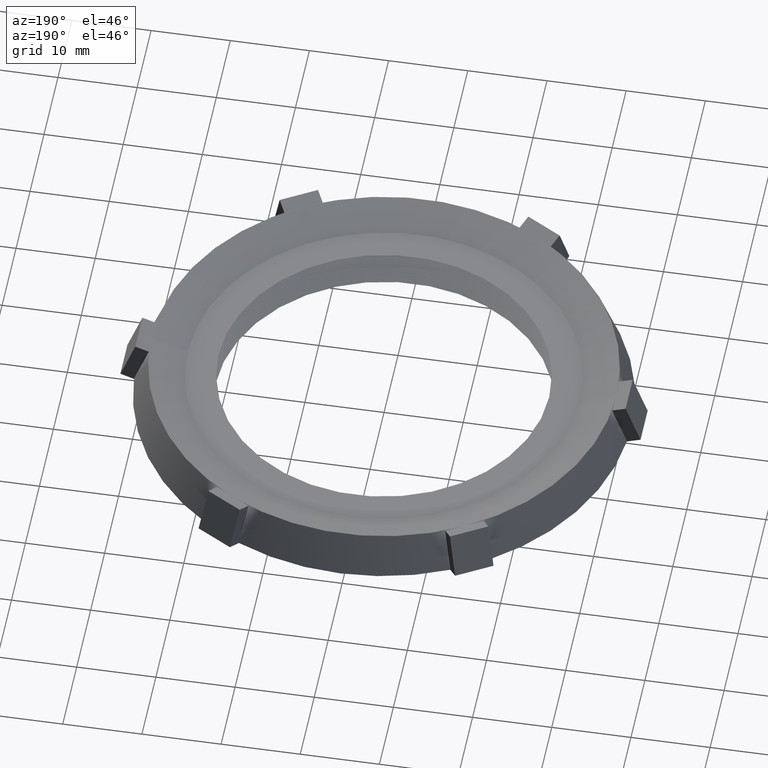
[diagram: clean part render]
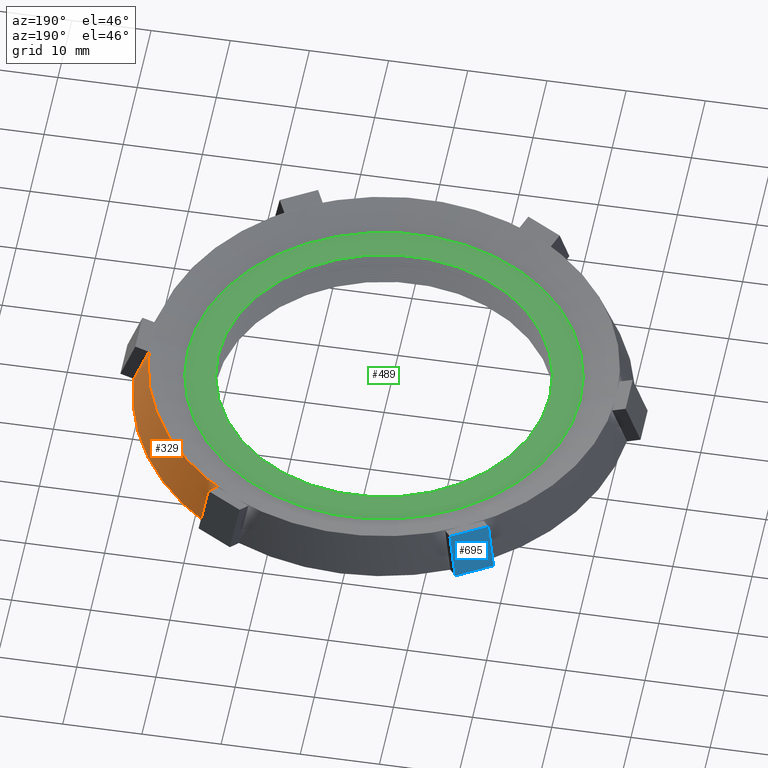
[diagram: same view with three faces highlighted in distinct colors, each labeled with its STEP entity id]
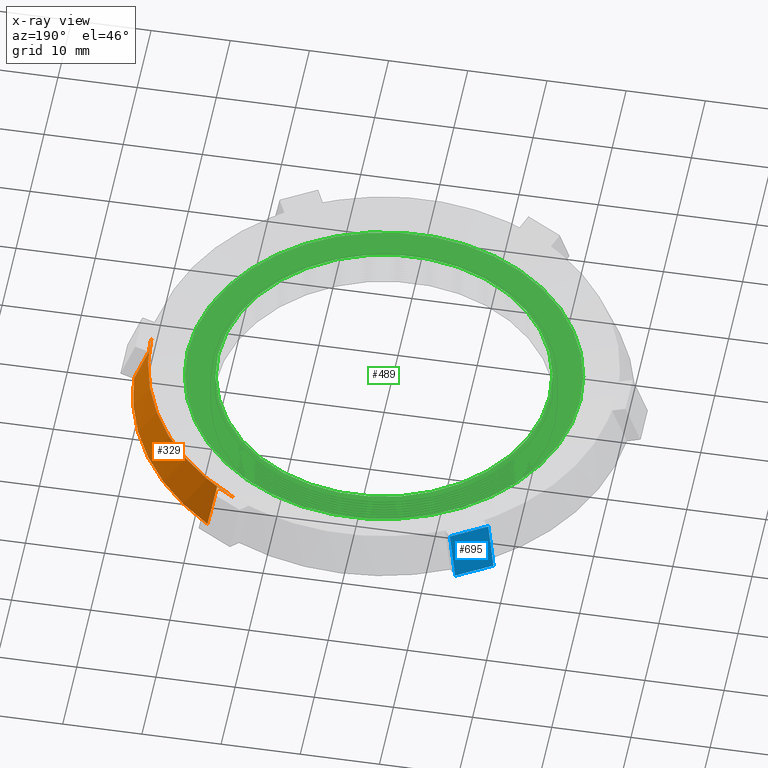
[diagram: x-ray of the same camera — body ghosted, the three highlighted faces saturated]
A machine part, auxiliary view with three faces highlighted in distinct colors.
The next image is the same camera in x-ray (body ghosted, the three faces saturated) — at least one of them is partly hidden behind the body in this view.
Their STEP definitions:

[orange] entity #329 — the highlighted conical surface has half-angle 20 deg.
#236 = VERTEX_POINT ( 'NONE', #1517 ) ;
#255 = EDGE_CURVE ( 'NONE', #323, #256, #1488, .T. ) ;
#256 = VERTEX_POINT ( 'NONE', #1483 ) ;
#323 = VERTEX_POINT ( 'NONE', #1714 ) ;
#327 = EDGE_LOOP ( 'NONE', ( #328, #396, #394, #390, #387, #494 ) ) ;
#328 = ORIENTED_EDGE ( 'NONE', *, *, #395, .F. ) ;
#329 = ADVANCED_FACE ( 'NONE', ( #1571 ), #1570, .T. ) ;
#336 = VERTEX_POINT ( 'NONE', #1677 ) ;
#386 = EDGE_CURVE ( 'NONE', #323, #393, #1877, .T. ) ;
#387 = ORIENTED_EDGE ( 'NONE', *, *, #255, .F. ) ;
#389 = EDGE_CURVE ( 'NONE', #256, #392, #1872, .T. ) ;
#390 = ORIENTED_EDGE ( 'NONE', *, *, #389, .F. ) ;
#391 = EDGE_CURVE ( 'NONE', #392, #236, #1863, .T. ) ;
#392 = VERTEX_POINT ( 'NONE', #1862 ) ;
#393 = VERTEX_POINT ( 'NONE', #1871 ) ;
#394 = ORIENTED_EDGE ( 'NONE', *, *, #391, .F. ) ;
#395 = EDGE_CURVE ( 'NONE', #336, #393, #1890, .T. ) ;
#396 = ORIENTED_EDGE ( 'NONE', *, *, #397, .T. ) ;
#397 = EDGE_CURVE ( 'NONE', #336, #236, #1885, .T. ) ;
#494 = ORIENTED_EDGE ( 'NONE', *, *, #386, .T. ) ;
#1483 = CARTESIAN_POINT ( 'NONE',  ( 1.225928219758400100, 0.09999999999999999200, -0.03448535783208510300 ) ) ;
#1484 = DIRECTION ( 'NONE',  ( -1.000000000000000000, 0.0000000000000000000, 0.0000000000000000000 ) ) ;
#1485 = DIRECTION ( 'NONE',  ( -0.0000000000000000000, -0.0000000000000000000, -1.000000000000000000 ) ) ;
#1486 = CARTESIAN_POINT ( 'NONE',  ( 0.0000000000000000000, 0.0000000000000000000, -0.03448535783208510300 ) ) ;
#1487 = AXIS2_PLACEMENT_3D ( 'NONE', #1486, #1485, #1484 ) ;
#1488 = CIRCLE ( 'NONE', #1487, 1.230000000000000000 ) ;
#1517 = CARTESIAN_POINT ( 'NONE',  ( 1.155573416405849500, 0.0000000000000000000, 0.1700000000000001800 ) ) ;
#1566 = DIRECTION ( 'NONE',  ( -1.000000000000000000, 0.0000000000000000000, 0.0000000000000000000 ) ) ;
#1567 = DIRECTION ( 'NONE',  ( -0.0000000000000000000, -0.0000000000000000000, -1.000000000000000000 ) ) ;
#1568 = CARTESIAN_POINT ( 'NONE',  ( 0.0000000000000000000, 0.0000000000000000000, 0.1700000000000001000 ) ) ;
#1569 = AXIS2_PLACEMENT_3D ( 'NONE', #1568, #1567, #1566 ) ;
#1570 = CONICAL_SURFACE ( 'NONE', #1569, 1.155573416405849500, 0.3490658503988582900 ) ;
#1571 = FACE_OUTER_BOUND ( 'NONE', #327, .T. ) ;
#1677 = CARTESIAN_POINT ( 'NONE',  ( 0.5777867082029221100, 1.000755934545440000, 0.1700000000000000400 ) ) ;
#1714 = CARTESIAN_POINT ( 'NONE',  ( 0.6995666502576415300, 1.011684981527007900, -0.03448535783208511700 ) ) ;
#1858 = CARTESIAN_POINT ( 'NONE',  ( 1.155573416405849500, 0.0000000000000000000, 0.1700000000000001800 ) ) ;
#1859 = CARTESIAN_POINT ( 'NONE',  ( 1.155573416405849300, 0.03337327920739405200, 0.1700000000000000400 ) ) ;
#1860 = CARTESIAN_POINT ( 'NONE',  ( 1.154297403480733400, 0.06672258400133721000, 0.1695355692767189500 ) ) ;
#1861 = CARTESIAN_POINT ( 'NONE',  ( 1.151747210933202300, 0.09999999999999999200, 0.1686073750977700700 ) ) ;
#1862 = CARTESIAN_POINT ( 'NONE',  ( 1.151747210933202300, 0.09999999999999999200, 0.1686073750977700700 ) ) ;
#1863 =( BOUNDED_CURVE ( )  B_SPLINE_CURVE ( 3, ( #1861, #1860, #1859, #1858 ),
 .UNSPECIFIED., .F., .T. ) 
 B_SPLINE_CURVE_WITH_KNOTS ( ( 4, 4 ),
 ( 3.065779327570803000, 3.141592653589793100 ),
 .UNSPECIFIED. ) 
 CURVE ( )  GEOMETRIC_REPRESENTATION_ITEM ( )  RATIONAL_B_SPLINE_CURVE ( ( 1.000000000000000000, 0.9995210856505535300, 0.9995210856505535300, 1.000000000000000000 ) ) 
 REPRESENTATION_ITEM ( '' )  );
#1864 = CARTESIAN_POINT ( 'NONE',  ( 1.151747210933202300, 0.09999999999999999200, 0.1686073750977700700 ) ) ;
#1865 = CARTESIAN_POINT ( 'NONE',  ( 1.172770045862305200, 0.09999999999999999200, 0.1110640989579229200 ) ) ;
#1866 = CARTESIAN_POINT ( 'NONE',  ( 1.193789091533046900, 0.09999999999999999200, 0.05351943835046824700 ) ) ;
#1867 = CARTESIAN_POINT ( 'NONE',  ( 1.214804908251292800, 0.09999999999999999200, -0.004026401334326436100 ) ) ;
#1868 = CARTESIAN_POINT ( 'NONE',  ( 1.218512778652548500, 0.09999999999999999200, -0.01417935035093091700 ) ) ;
#1869 = CARTESIAN_POINT ( 'NONE',  ( 1.222220548249559400, 0.09999999999999999200, -0.02433233618191569700 ) ) ;
#1870 = CARTESIAN_POINT ( 'NONE',  ( 1.225928219758400100, 0.09999999999999999200, -0.03448535783208510300 ) ) ;
#1871 = CARTESIAN_POINT ( 'NONE',  ( 0.6624761458450427700, 0.9474423434060289500, 0.1686073750977700700 ) ) ;
#1872 = B_SPLINE_CURVE_WITH_KNOTS ( 'NONE', 3,
 ( #1870, #1869, #1868, #1867, #1866, #1865, #1864 ),
 .UNSPECIFIED., .F., .F.,
 ( 4, 3, 4 ),
 ( 0.01089266645252805000, 0.01171629883721928000, 0.01638455999055427000 ),
 .UNSPECIFIED. ) ;
#1873 = CARTESIAN_POINT ( 'NONE',  ( 0.6624761458450427700, 0.9474423434060289500, 0.1686073750977700700 ) ) ;
#1874 = CARTESIAN_POINT ( 'NONE',  ( 0.6748421176262435800, 0.9688608348160319100, 0.1009116022542960500 ) ) ;
#1875 = CARTESIAN_POINT ( 'NONE',  ( 0.6872054697984423300, 0.9902747889301474200, 0.03321391516157051700 ) ) ;
#1876 = CARTESIAN_POINT ( 'NONE',  ( 0.6995666502576415300, 1.011684981527007900, -0.03448535783208511700 ) ) ;
#1877 = B_SPLINE_CURVE_WITH_KNOTS ( 'NONE', 3,
 ( #1876, #1875, #1874, #1873 ),
 .UNSPECIFIED., .F., .F.,
 ( 4, 4 ),
 ( 2.129183676404964400E-007, 0.005492106459865100900 ),
 .UNSPECIFIED. ) ;
#1881 = DIRECTION ( 'NONE',  ( -1.000000000000000000, 0.0000000000000000000, 0.0000000000000000000 ) ) ;
#1882 = DIRECTION ( 'NONE',  ( -0.0000000000000000000, -0.0000000000000000000, -1.000000000000000000 ) ) ;
#1883 = CARTESIAN_POINT ( 'NONE',  ( 0.0000000000000000000, 0.0000000000000000000, 0.1700000000000001000 ) ) ;
#1884 = AXIS2_PLACEMENT_3D ( 'NONE', #1883, #1882, #1881 ) ;
#1885 = CIRCLE ( 'NONE', #1884, 1.155573416405849500 ) ;
#1886 = CARTESIAN_POINT ( 'NONE',  ( 0.6624761458450427700, 0.9474423434060289500, 0.1686073750977700700 ) ) ;
#1887 = CARTESIAN_POINT ( 'NONE',  ( 0.6349321544916632900, 0.9662895829360642600, 0.1695355692767189500 ) ) ;
#1888 = CARTESIAN_POINT ( 'NONE',  ( 0.6066888158041161500, 0.9840692949417433300, 0.1700000000000000400 ) ) ;
#1889 = CARTESIAN_POINT ( 'NONE',  ( 0.5777867082029221100, 1.000755934545440000, 0.1700000000000000400 ) ) ;
#1890 =( BOUNDED_CURVE ( )  B_SPLINE_CURVE ( 3, ( #1889, #1888, #1887, #1886 ),
 .UNSPECIFIED., .F., .T. ) 
 B_SPLINE_CURVE_WITH_KNOTS ( ( 4, 4 ),
 ( 3.141592653589793100, 3.217405979608783300 ),
 .UNSPECIFIED. ) 
 CURVE ( )  GEOMETRIC_REPRESENTATION_ITEM ( )  RATIONAL_B_SPLINE_CURVE ( ( 1.000000000000000000, 0.9995210856505535300, 0.9995210856505535300, 1.000000000000000000 ) ) 
 REPRESENTATION_ITEM ( '' )  );

[blue] entity #695 — the highlighted planar face has unit normal (0.4698, -0.8138, -0.342).
#613 = VERTEX_POINT ( 'NONE', #2130 ) ;
#615 = EDGE_CURVE ( 'NONE', #766, #613, #2129, .T. ) ;
#660 = VERTEX_POINT ( 'NONE', #2296 ) ;
#662 = EDGE_CURVE ( 'NONE', #660, #663, #2295, .T. ) ;
#663 = VERTEX_POINT ( 'NONE', #2167 ) ;
#681 = EDGE_CURVE ( 'NONE', #663, #613, #2140, .T. ) ;
#682 = ORIENTED_EDGE ( 'NONE', *, *, #662, .F. ) ;
#694 = EDGE_CURVE ( 'NONE', #660, #766, #2482, .T. ) ;
#695 = ADVANCED_FACE ( 'NONE', ( #2478 ), #2476, .F. ) ;
#696 = EDGE_LOOP ( 'NONE', ( #697, #698, #699, #682 ) ) ;
#697 = ORIENTED_EDGE ( 'NONE', *, *, #694, .T. ) ;
#698 = ORIENTED_EDGE ( 'NONE', *, *, #615, .T. ) ;
#699 = ORIENTED_EDGE ( 'NONE', *, *, #681, .F. ) ;
#766 = VERTEX_POINT ( 'NONE', #2345 ) ;
#2126 = DIRECTION ( 'NONE',  ( -0.1710100716628335800, 0.2961981327260193000, -0.9396926207859099800 ) ) ;
#2127 = VECTOR ( 'NONE', #2126, 39.37007874015748100 ) ;
#2128 = CARTESIAN_POINT ( 'NONE',  ( -0.5600805537647867100, 1.170087975451910900, -0.01142195143690943400 ) ) ;
#2129 = LINE ( 'NONE', #2128, #2127 ) ;
#2130 = CARTESIAN_POINT ( 'NONE',  ( -0.5600805537647867100, 1.170087975451910900, -0.01142195143690943400 ) ) ;
#2137 = DIRECTION ( 'NONE',  ( 0.8660254037844362700, 0.5000000000000041100, -0.0000000000000000000 ) ) ;
#2138 = VECTOR ( 'NONE', #2137, 39.37007874015748900 ) ;
#2139 = CARTESIAN_POINT ( 'NONE',  ( -0.7332856345216739500, 1.070087975451910100, -0.01142195143690943400 ) ) ;
#2140 = LINE ( 'NONE', #2139, #2138 ) ;
#2167 = CARTESIAN_POINT ( 'NONE',  ( -0.7332856345216739500, 1.070087975451910100, -0.01142195143690943400 ) ) ;
#2292 = DIRECTION ( 'NONE',  ( -0.1710100716628335800, 0.2961981327260193000, -0.9396926207859099800 ) ) ;
#2293 = VECTOR ( 'NONE', #2292, 39.37007874015748100 ) ;
#2294 = CARTESIAN_POINT ( 'NONE',  ( -0.7332856345216739500, 1.070087975451910100, -0.01142195143690943400 ) ) ;
#2295 = LINE ( 'NONE', #2294, #2293 ) ;
#2296 = CARTESIAN_POINT ( 'NONE',  ( -0.6960723427245981700, 1.005632663342489200, 0.1930634063951750500 ) ) ;
#2345 = CARTESIAN_POINT ( 'NONE',  ( -0.5228672619677109400, 1.105632663342490200, 0.1930634063951750500 ) ) ;
#2472 = DIRECTION ( 'NONE',  ( 0.8660254037844363800, 0.5000000000000041100, 0.0000000000000000000 ) ) ;
#2473 = DIRECTION ( 'NONE',  ( 0.4698463103929588800, -0.8137976813493729100, -0.3420201433256643800 ) ) ;
#2474 = CARTESIAN_POINT ( 'NONE',  ( -0.7332856345216739500, 1.070087975451910100, -0.01142195143690943400 ) ) ;
#2475 = AXIS2_PLACEMENT_3D ( 'NONE', #2474, #2473, #2472 ) ;
#2476 = PLANE ( 'NONE',  #2475 ) ;
#2478 = FACE_OUTER_BOUND ( 'NONE', #696, .T. ) ;
#2479 = DIRECTION ( 'NONE',  ( 0.8660254037844362700, 0.5000000000000041100, -0.0000000000000000000 ) ) ;
#2480 = VECTOR ( 'NONE', #2479, 39.37007874015748900 ) ;
#2481 = CARTESIAN_POINT ( 'NONE',  ( -0.6960723427245981700, 1.005632663342489200, 0.1930634063951750500 ) ) ;
#2482 = LINE ( 'NONE', #2481, #2480 ) ;

[green] entity #489 — the highlighted planar face has unit normal (-0, 0, -1).
#242 = EDGE_CURVE ( 'NONE', #243, #310, #1451, .T. ) ;
#243 = VERTEX_POINT ( 'NONE', #1446 ) ;
#296 = EDGE_CURVE ( 'NONE', #297, #298, #1646, .T. ) ;
#297 = VERTEX_POINT ( 'NONE', #1637 ) ;
#298 = VERTEX_POINT ( 'NONE', #1636 ) ;
#310 = VERTEX_POINT ( 'NONE', #1620 ) ;
#489 = ADVANCED_FACE ( 'NONE', ( #2021, #2015 ), #2014, .F. ) ;
#490 = EDGE_LOOP ( 'NONE', ( #492, #562 ) ) ;
#491 = EDGE_CURVE ( 'NONE', #310, #243, #2008, .T. ) ;
#492 = ORIENTED_EDGE ( 'NONE', *, *, #296, .F. ) ;
#503 = EDGE_CURVE ( 'NONE', #298, #297, #1899, .T. ) ;
#559 = ORIENTED_EDGE ( 'NONE', *, *, #491, .T. ) ;
#560 = EDGE_LOOP ( 'NONE', ( #561, #559 ) ) ;
#561 = ORIENTED_EDGE ( 'NONE', *, *, #242, .T. ) ;
#562 = ORIENTED_EDGE ( 'NONE', *, *, #503, .F. ) ;
#1446 = CARTESIAN_POINT ( 'NONE',  ( -0.8250000000000000700, 0.0000000000000000000, 0.1044853578320850400 ) ) ;
#1447 = DIRECTION ( 'NONE',  ( -1.000000000000000000, 0.0000000000000000000, 0.0000000000000000000 ) ) ;
#1448 = DIRECTION ( 'NONE',  ( -0.0000000000000000000, -0.0000000000000000000, -1.000000000000000000 ) ) ;
#1449 = CARTESIAN_POINT ( 'NONE',  ( 0.0000000000000000000, 0.0000000000000000000, 0.1044853578320850000 ) ) ;
#1450 = AXIS2_PLACEMENT_3D ( 'NONE', #1449, #1448, #1447 ) ;
#1451 = CIRCLE ( 'NONE', #1450, 0.8250000000000001800 ) ;
#1620 = CARTESIAN_POINT ( 'NONE',  ( 0.8250000000000000700, 1.010300241903461600E-016, 0.1044853578320850400 ) ) ;
#1636 = CARTESIAN_POINT ( 'NONE',  ( -0.9755734164058494900, 1.304907976194821100E-016, 0.1044853578320849000 ) ) ;
#1637 = CARTESIAN_POINT ( 'NONE',  ( 0.9755734164058494900, 0.0000000000000000000, 0.1044853578320849000 ) ) ;
#1638 = DIRECTION ( 'NONE',  ( -1.000000000000000000, 0.0000000000000000000, 0.0000000000000000000 ) ) ;
#1639 = DIRECTION ( 'NONE',  ( -0.0000000000000000000, -0.0000000000000000000, -1.000000000000000000 ) ) ;
#1640 = CARTESIAN_POINT ( 'NONE',  ( 0.0000000000000000000, 0.0000000000000000000, 0.1044853578320849000 ) ) ;
#1641 = AXIS2_PLACEMENT_3D ( 'NONE', #1640, #1639, #1638 ) ;
#1646 = CIRCLE ( 'NONE', #1641, 0.9755734164058494900 ) ;
#1895 = DIRECTION ( 'NONE',  ( -1.000000000000000000, 0.0000000000000000000, 0.0000000000000000000 ) ) ;
#1896 = DIRECTION ( 'NONE',  ( -0.0000000000000000000, -0.0000000000000000000, -1.000000000000000000 ) ) ;
#1897 = CARTESIAN_POINT ( 'NONE',  ( 0.0000000000000000000, 0.0000000000000000000, 0.1044853578320849000 ) ) ;
#1898 = AXIS2_PLACEMENT_3D ( 'NONE', #1897, #1896, #1895 ) ;
#1899 = CIRCLE ( 'NONE', #1898, 0.9755734164058494900 ) ;
#2005 = DIRECTION ( 'NONE',  ( -1.000000000000000000, 0.0000000000000000000, 0.0000000000000000000 ) ) ;
#2006 = DIRECTION ( 'NONE',  ( -0.0000000000000000000, -0.0000000000000000000, -1.000000000000000000 ) ) ;
#2007 = AXIS2_PLACEMENT_3D ( 'NONE', #2012, #2006, #2005 ) ;
#2008 = CIRCLE ( 'NONE', #2007, 0.8250000000000001800 ) ;
#2009 = DIRECTION ( 'NONE',  ( -1.000000000000000000, 0.0000000000000000000, 0.0000000000000000000 ) ) ;
#2010 = DIRECTION ( 'NONE',  ( -0.0000000000000000000, 0.0000000000000000000, -1.000000000000000000 ) ) ;
#2011 = AXIS2_PLACEMENT_3D ( 'NONE', #2013, #2010, #2009 ) ;
#2012 = CARTESIAN_POINT ( 'NONE',  ( 0.0000000000000000000, 0.0000000000000000000, 0.1044853578320850000 ) ) ;
#2013 = CARTESIAN_POINT ( 'NONE',  ( 0.9755734164058494900, 0.0000000000000000000, 0.1044853578320850000 ) ) ;
#2014 = PLANE ( 'NONE',  #2011 ) ;
#2015 = FACE_OUTER_BOUND ( 'NONE', #490, .T. ) ;
#2021 = FACE_BOUND ( 'NONE', #560, .T. ) ;